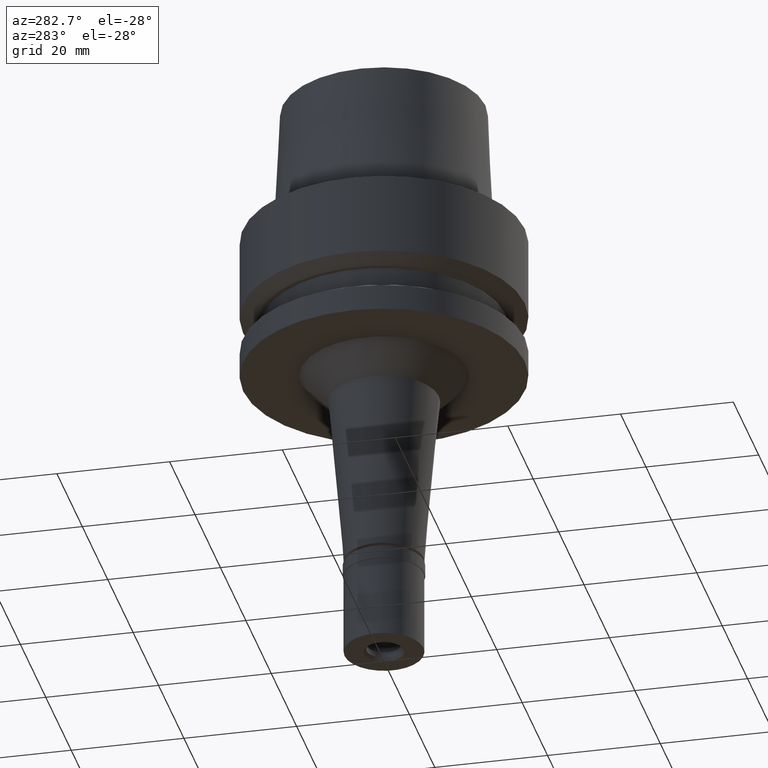
[diagram: clean part render]
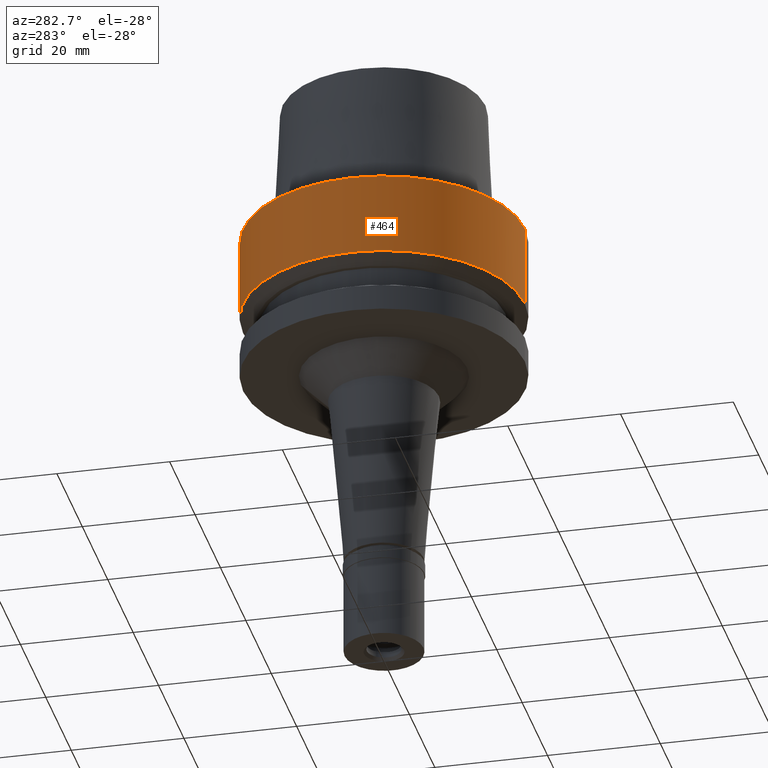
[diagram: same view with one face highlighted and labeled with its STEP entity id]
A machine part, auxiliary view. The second image highlights one B-rep face of the part: STEP entity #464.
In plain terms, the highlighted cylindrical surface (partial cylindrical patch) has radius 25 mm, axis along (0, 0, -1).
Its self-contained STEP definition (entity closure, byte-faithful):
#39 = DIRECTION ( 'NONE',  ( 0.0000000000000000000, 1.000000000000000000, 0.0000000000000000000 ) ) ;
#81 = CARTESIAN_POINT ( 'NONE',  ( 0.0000000000000000000, -25.00000000000000000, 2.605323364453999397E-14 ) ) ;
#93 = LINE ( 'NONE', #81, #614 ) ;
#96 = CARTESIAN_POINT ( 'NONE',  ( 0.0000000000000000000, 25.00000000000000000, -14.61835441913999922 ) ) ;
#117 = AXIS2_PLACEMENT_3D ( 'NONE', #2330, #2149, #2363 ) ;
#204 = DIRECTION ( 'NONE',  ( 0.0000000000000000000, 0.0000000000000000000, 1.000000000000000000 ) ) ;
#309 = VERTEX_POINT ( 'NONE', #544 ) ;
#355 = DIRECTION ( 'NONE',  ( 0.0000000000000000000, 0.0000000000000000000, -1.000000000000000000 ) ) ;
#410 = CARTESIAN_POINT ( 'NONE',  ( 0.0000000000000000000, 0.0000000000000000000, -14.61835441913999922 ) ) ;
#416 = AXIS2_PLACEMENT_3D ( 'NONE', #1448, #355, #2211 ) ;
#464 = ADVANCED_FACE ( 'NONE', ( #2466 ), #1410, .T. ) ;
#490 = VECTOR ( 'NONE', #1872, 1000.000000000000000 ) ;
#544 = CARTESIAN_POINT ( 'NONE',  ( 0.0000000000000000000, -25.00000000000000000, 3.907985046680999726E-14 ) ) ;
#614 = VECTOR ( 'NONE', #1717, 1000.000000000000000 ) ;
#795 = ORIENTED_EDGE ( 'NONE', *, *, #2177, .T. ) ;
#965 = EDGE_CURVE ( 'NONE', #2389, #1934, #1452, .T. ) ;
#1088 = CIRCLE ( 'NONE', #1774, 25.00000000000000000 ) ;
#1122 = VERTEX_POINT ( 'NONE', #1829 ) ;
#1175 = CARTESIAN_POINT ( 'NONE',  ( 0.0000000000000000000, 25.00000000000000000, 2.605323364453999397E-14 ) ) ;
#1281 = EDGE_LOOP ( 'NONE', ( #1899, #1575, #795, #1788 ) ) ;
#1410 = CYLINDRICAL_SURFACE ( 'NONE', #416, 25.00000000000000000 ) ;
#1448 = CARTESIAN_POINT ( 'NONE',  ( 0.0000000000000000000, 0.0000000000000000000, 30.05000000000000071 ) ) ;
#1452 = LINE ( 'NONE', #2670, #490 ) ;
#1524 = CIRCLE ( 'NONE', #117, 25.00000000000000000 ) ;
#1575 = ORIENTED_EDGE ( 'NONE', *, *, #2369, .F. ) ;
#1717 = DIRECTION ( 'NONE',  ( 0.0000000000000000000, 0.0000000000000000000, -1.000000000000000000 ) ) ;
#1774 = AXIS2_PLACEMENT_3D ( 'NONE', #410, #204, #39 ) ;
#1785 = EDGE_CURVE ( 'NONE', #1934, #1122, #1088, .T. ) ;
#1788 = ORIENTED_EDGE ( 'NONE', *, *, #965, .T. ) ;
#1829 = CARTESIAN_POINT ( 'NONE',  ( 0.0000000000000000000, -25.00000000000000000, -14.61835441913999922 ) ) ;
#1872 = DIRECTION ( 'NONE',  ( 0.0000000000000000000, 0.0000000000000000000, -1.000000000000000000 ) ) ;
#1899 = ORIENTED_EDGE ( 'NONE', *, *, #1785, .T. ) ;
#1934 = VERTEX_POINT ( 'NONE', #96 ) ;
#2149 = DIRECTION ( 'NONE',  ( 0.0000000000000000000, 0.0000000000000000000, -1.000000000000000000 ) ) ;
#2177 = EDGE_CURVE ( 'NONE', #309, #2389, #1524, .T. ) ;
#2211 = DIRECTION ( 'NONE',  ( 0.0000000000000000000, -1.000000000000000000, 0.0000000000000000000 ) ) ;
#2330 = CARTESIAN_POINT ( 'NONE',  ( 0.0000000000000000000, 0.0000000000000000000, 3.907985046680999726E-14 ) ) ;
#2363 = DIRECTION ( 'NONE',  ( 0.0000000000000000000, -1.000000000000000000, 0.0000000000000000000 ) ) ;
#2369 = EDGE_CURVE ( 'NONE', #309, #1122, #93, .T. ) ;
#2389 = VERTEX_POINT ( 'NONE', #1175 ) ;
#2466 = FACE_OUTER_BOUND ( 'NONE', #1281, .T. ) ;
#2670 = CARTESIAN_POINT ( 'NONE',  ( 0.0000000000000000000, 25.00000000000000000, 2.605323364453999397E-14 ) ) ;